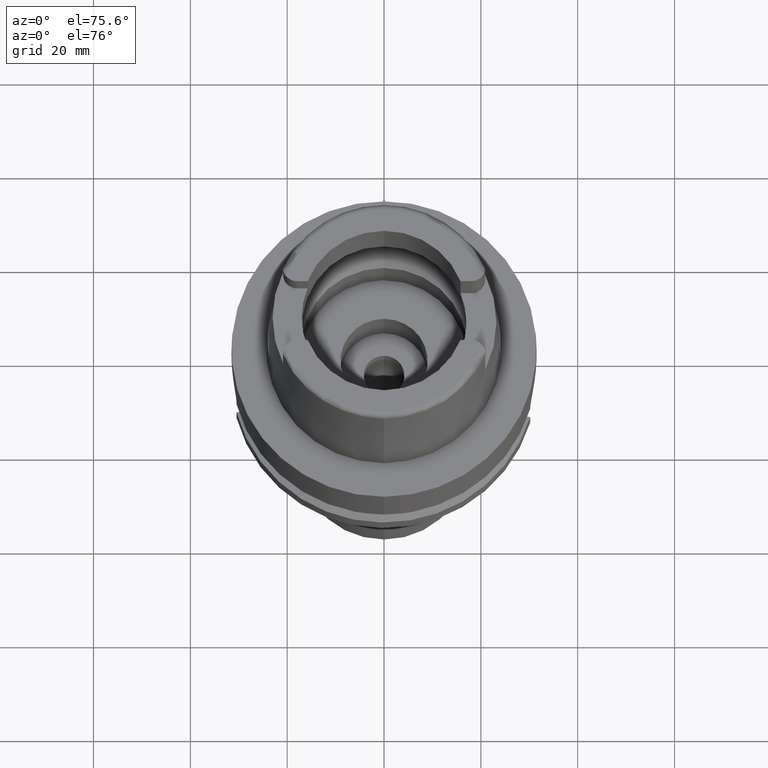
[diagram: clean part render]
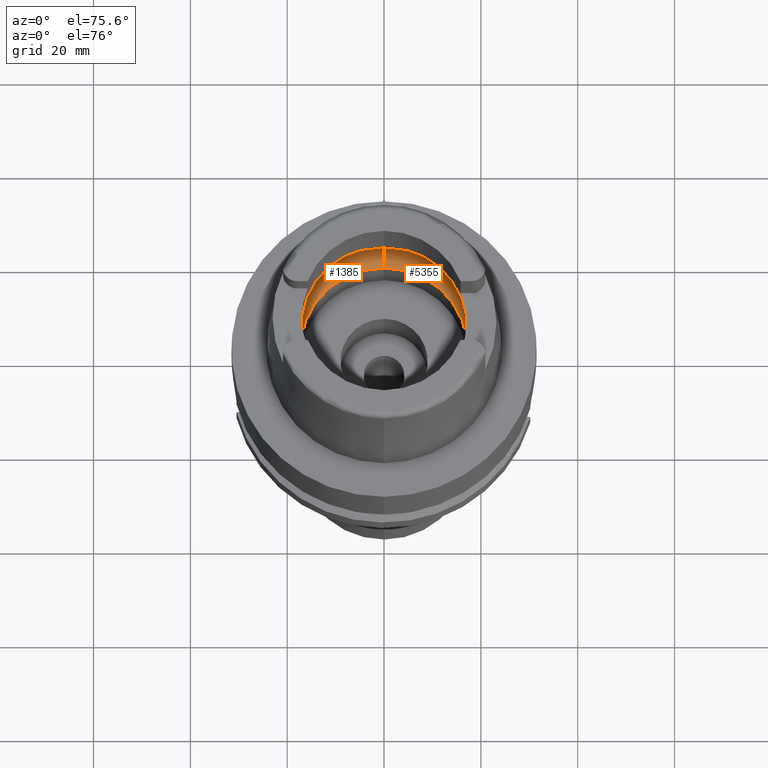
[diagram: same view with one multi-face feature highlighted, each face labeled with its STEP entity id]
A machine part, auxiliary view. The highlighted faces form ONE feature: a constant-radius fillet chain: 2 tangent blend faces with common blend radius 8 mm. The faces share edges in the B-rep.
Their STEP definitions:
[1] entity #1385 (Torus):
#40 = CARTESIAN_POINT ( 'NONE',  ( 0.0000000000000000000, -20.00000000000000000, 6.186348233825000875 ) ) ;
#92 = CARTESIAN_POINT ( 'NONE',  ( -19.93292508344945801, 1.081630659659294169, 5.408972087979956989 ) ) ;
#218 = CARTESIAN_POINT ( 'NONE',  ( 0.0000000000000000000, 20.00000000000000000, 6.186348233825000875 ) ) ;
#250 = CARTESIAN_POINT ( 'NONE',  ( -19.88332310116147283, 2.178371483505385786, 5.921391814315846602 ) ) ;
#377 = AXIS2_PLACEMENT_3D ( 'NONE', #5095, #5513, #3709 ) ;
#487 = EDGE_CURVE ( 'NONE', #1128, #4048, #2598, .T. ) ;
#565 = CIRCLE ( 'NONE', #3840, 20.00000000000001421 ) ;
#658 = ORIENTED_EDGE ( 'NONE', *, *, #5400, .T. ) ;
#811 = CARTESIAN_POINT ( 'NONE',  ( 0.0000000000000000000, 17.25000000000000000, 0.1500000000000999700 ) ) ;
#860 = CARTESIAN_POINT ( 'NONE',  ( -19.86453968564131500, -2.328737885376345407, 6.053878405347992597 ) ) ;
#863 = DIRECTION ( 'NONE',  ( 0.0000000000000000000, -0.6562500000000006661, -0.7545435292281016393 ) ) ;
#1001 = CARTESIAN_POINT ( 'NONE',  ( -19.84575864665999845, -2.479085262491000030, 6.186348233825000875 ) ) ;
#1012 = CARTESIAN_POINT ( 'NONE',  ( -19.93856671042052398, -0.9459665778997381480, 5.348222674928019060 ) ) ;
#1047 = CARTESIAN_POINT ( 'NONE',  ( 0.0000000000000000000, 0.0000000000000000000, 0.1500000000000999700 ) ) ;
#1104 = CARTESIAN_POINT ( 'NONE',  ( 0.0000000000000000000, 0.0000000000000000000, 6.186348233825000875 ) ) ;
#1128 = VERTEX_POINT ( 'NONE', #4513 ) ;
#1266 = VERTEX_POINT ( 'NONE', #1001 ) ;
#1287 = CARTESIAN_POINT ( 'NONE',  ( -19.88058961472209774, -2.158414018199903417, 5.925204145833316893 ) ) ;
#1289 = DIRECTION ( 'NONE',  ( -1.000000000000000000, 0.0000000000000000000, 0.0000000000000000000 ) ) ;
#1318 = EDGE_CURVE ( 'NONE', #4048, #1266, #2782, .T. ) ;
#1385 = ADVANCED_FACE ( 'NONE', ( #4689 ), #4540, .F. ) ;
#1449 = CARTESIAN_POINT ( 'NONE',  ( -19.92208494194046509, -1.430041077684033990, 5.533135808937241329 ) ) ;
#1451 = VERTEX_POINT ( 'NONE', #218 ) ;
#1478 = CARTESIAN_POINT ( 'NONE',  ( -19.92517785718085577, -1.343613127942956842, 5.498962406970089312 ) ) ;
#1525 = DIRECTION ( 'NONE',  ( 0.0000000000000000000, -1.000000000000000000, 0.0000000000000000000 ) ) ;
#1531 = CARTESIAN_POINT ( 'NONE',  ( -19.92840422587602944, 1.244362650384072122, 5.462311864171463860 ) ) ;
#1548 = DIRECTION ( 'NONE',  ( 0.0000000000000000000, 0.0000000000000000000, -1.000000000000000000 ) ) ;
#1631 = CARTESIAN_POINT ( 'NONE',  ( 0.0000000000000000000, 0.0000000000000000000, 6.186348233825000875 ) ) ;
#1716 = CARTESIAN_POINT ( 'NONE',  ( 0.0000000000000000000, -12.00000000000000000, 6.186348233825000875 ) ) ;
#1741 = CARTESIAN_POINT ( 'NONE',  ( -19.94501428475999560, -0.4960423020627297008, 5.249999999999995559 ) ) ;
#1768 = EDGE_CURVE ( 'NONE', #2591, #1128, #5063, .T. ) ;
#1789 = CARTESIAN_POINT ( 'NONE',  ( -19.94340239125193293, 0.4850157974226460000, 5.274610163457148282 ) ) ;
#1814 = CARTESIAN_POINT ( 'NONE',  ( -19.93096058823649130, 1.157935579649966629, 5.432577573767241041 ) ) ;
#2138 = VERTEX_POINT ( 'NONE', #5273 ) ;
#2222 = ORIENTED_EDGE ( 'NONE', *, *, #487, .F. ) ;
#2240 = CARTESIAN_POINT ( 'NONE',  ( -19.93655184384261858, 0.9261166967963114782, 5.364558725656097593 ) ) ;
#2352 = CARTESIAN_POINT ( 'NONE',  ( -19.90996073982917380, 1.795817278995830657, 5.670328124222732136 ) ) ;
#2429 = DIRECTION ( 'NONE',  ( 0.0000000000000000000, 0.0000000000000000000, 1.000000000000000000 ) ) ;
#2499 = AXIS2_PLACEMENT_3D ( 'NONE', #2506, #2429, #5527 ) ;
#2506 = CARTESIAN_POINT ( 'NONE',  ( 0.0000000000000000000, 0.0000000000000000000, 6.186348233825000875 ) ) ;
#2587 = CARTESIAN_POINT ( 'NONE',  ( -19.91448525756728927, -1.610510976265786987, 5.612925495665686881 ) ) ;
#2591 = VERTEX_POINT ( 'NONE', #811 ) ;
#2598 = CIRCLE ( 'NONE', #3978, 7.999999999999992895 ) ;
#2758 = CARTESIAN_POINT ( 'NONE',  ( -19.84575864665999845, -2.479085262491000030, 6.186348233825000875 ) ) ;
#2782 = CIRCLE ( 'NONE', #4171, 20.00000000000000000 ) ;
#2813 = ORIENTED_EDGE ( 'NONE', *, *, #3510, .F. ) ;
#2827 = DIRECTION ( 'NONE',  ( -0.9922879323327794543, 0.1239542631244973381, 0.0000000000000000000 ) ) ;
#3104 = CARTESIAN_POINT ( 'NONE',  ( -19.93856671072771292, 0.8185607198028845843, 5.338678409714962214 ) ) ;
#3186 = ORIENTED_EDGE ( 'NONE', *, *, #4888, .F. ) ;
#3243 = EDGE_LOOP ( 'NONE', ( #5608, #2222, #4520, #658, #3186, #2813, #3447 ) ) ;
#3272 = CARTESIAN_POINT ( 'NONE',  ( -19.84575864665999845, 2.479085262489999941, 6.186348233825000875 ) ) ;
#3292 = CARTESIAN_POINT ( 'NONE',  ( -19.92705993187612989, 1.286922590644232978, 5.477696685208107930 ) ) ;
#3317 = CARTESIAN_POINT ( 'NONE',  ( -19.92646963884338263, 1.305022040076338818, 5.484397814373272340 ) ) ;
#3405 = B_SPLINE_CURVE_WITH_KNOTS ( 'NONE', 3,
 ( #2758, #860, #1287, #4366, #4907, #2587, #4526, #1449, #4963, #4497, #1478, #5363, #1012, #1741, #5390 ),
 .UNSPECIFIED., .F., .F.,
 ( 4, 2, 2, 1, 1, 1, 2, 2, 4 ),
 ( 0.0000000000000000000, 0.2500000000000051070, 0.3750000000000077716, 0.4375000000000091038, 0.4687500000000098255, 0.4843750000000101030, 0.4921875000000099920, 0.5000000000000098810, 1.000000000000000000 ),
 .UNSPECIFIED. ) ;
#3447 = ORIENTED_EDGE ( 'NONE', *, *, #5122, .F. ) ;
#3510 = EDGE_CURVE ( 'NONE', #5152, #2138, #4010, .T. ) ;
#3602 = DIRECTION ( 'NONE',  ( 0.0000000000000000000, 1.000000000000000000, 0.0000000000000000000 ) ) ;
#3709 = DIRECTION ( 'NONE',  ( 0.0000000000000000000, 0.6562500000000006661, -0.7545435292281016393 ) ) ;
#3840 = AXIS2_PLACEMENT_3D ( 'NONE', #1104, #5028, #2827 ) ;
#3961 = CARTESIAN_POINT ( 'NONE',  ( -19.94501428476000271, 0.2480002814738951344, 5.249999999999999112 ) ) ;
#3978 = AXIS2_PLACEMENT_3D ( 'NONE', #1716, #1289, #863 ) ;
#4010 = B_SPLINE_CURVE_WITH_KNOTS ( 'NONE', 3,
 ( #5240, #3961, #1789, #3104, #2240, #92, #1814, #1531, #3292, #3317, #4174, #5067, #2352, #250, #3272 ),
 .UNSPECIFIED., .F., .F.,
 ( 4, 2, 2, 1, 1, 1, 2, 2, 4 ),
 ( 0.0000000000000000000, 0.2499999999999956146, 0.3749999999999934497, 0.4374999999999923395, 0.4687499999999917288, 0.4843749999999914513, 0.4921874999999914513, 0.4999999999999915623, 1.000000000000000000 ),
 .UNSPECIFIED. ) ;
#4048 = VERTEX_POINT ( 'NONE', #40 ) ;
#4171 = AXIS2_PLACEMENT_3D ( 'NONE', #1631, #1548, #1525 ) ;
#4174 = CARTESIAN_POINT ( 'NONE',  ( -19.92607296192538513, 1.317057065037986030, 5.488888788417265907 ) ) ;
#4366 = CARTESIAN_POINT ( 'NONE',  ( -19.90056784349247820, -1.871074272730828048, 5.748194928871746434 ) ) ;
#4497 = CARTESIAN_POINT ( 'NONE',  ( -19.92467615132159864, -1.358120919786871328, 5.504564686247708671 ) ) ;
#4506 = DIRECTION ( 'NONE',  ( 0.0000000000000000000, 0.0000000000000000000, 1.000000000000000000 ) ) ;
#4513 = CARTESIAN_POINT ( 'NONE',  ( 0.0000000000000000000, -17.25000000000000000, 0.1500000000000999700 ) ) ;
#4520 = ORIENTED_EDGE ( 'NONE', *, *, #1768, .F. ) ;
#4526 = CARTESIAN_POINT ( 'NONE',  ( -19.91819960699401193, -1.528790138807751164, 5.574827418276589341 ) ) ;
#4540 = TOROIDAL_SURFACE ( 'NONE', #2499, 12.00000000000000000, 8.000000000000000000 ) ;
#4587 = CIRCLE ( 'NONE', #377, 7.999999999999992895 ) ;
#4689 = FACE_OUTER_BOUND ( 'NONE', #3243, .T. ) ;
#4888 = EDGE_CURVE ( 'NONE', #2138, #1451, #565, .T. ) ;
#4907 = CARTESIAN_POINT ( 'NONE',  ( -19.90654447560747542, -1.770008974173177263, 5.691881888190377659 ) ) ;
#4963 = CARTESIAN_POINT ( 'NONE',  ( -19.92391559123418787, -1.379822842001579009, 5.513022806674898746 ) ) ;
#5028 = DIRECTION ( 'NONE',  ( 0.0000000000000000000, 0.0000000000000000000, -1.000000000000000000 ) ) ;
#5063 = CIRCLE ( 'NONE', #5334, 17.25000000000000000 ) ;
#5067 = CARTESIAN_POINT ( 'NONE',  ( -19.92591704426989452, 1.321751840890049490, 5.490650643677390974 ) ) ;
#5095 = CARTESIAN_POINT ( 'NONE',  ( 0.0000000000000000000, 12.00000000000000000, 6.186348233825000875 ) ) ;
#5122 = EDGE_CURVE ( 'NONE', #1266, #5152, #3405, .T. ) ;
#5152 = VERTEX_POINT ( 'NONE', #5217 ) ;
#5217 = CARTESIAN_POINT ( 'NONE',  ( -19.94501428475999916, 0.0000000000000000000, 5.250000000000000000 ) ) ;
#5240 = CARTESIAN_POINT ( 'NONE',  ( -19.94501428475999916, 0.0000000000000000000, 5.250000000000000000 ) ) ;
#5273 = CARTESIAN_POINT ( 'NONE',  ( -19.84575864665999845, 2.479085262489999941, 6.186348233825000875 ) ) ;
#5334 = AXIS2_PLACEMENT_3D ( 'NONE', #1047, #4506, #3602 ) ;
#5363 = CARTESIAN_POINT ( 'NONE',  ( -19.92547007504345302, -1.335031240339097369, 5.495683724100088874 ) ) ;
#5390 = CARTESIAN_POINT ( 'NONE',  ( -19.94501428475999916, 0.0000000000000000000, 5.250000000000000000 ) ) ;
#5400 = EDGE_CURVE ( 'NONE', #2591, #1451, #4587, .T. ) ;
#5513 = DIRECTION ( 'NONE',  ( 1.000000000000000000, 0.0000000000000000000, 0.0000000000000000000 ) ) ;
#5527 = DIRECTION ( 'NONE',  ( 0.0000000000000000000, 1.000000000000000000, 0.0000000000000000000 ) ) ;
#5608 = ORIENTED_EDGE ( 'NONE', *, *, #1318, .F. ) ;
[2] entity #5355 (Torus):
#31 = CIRCLE ( 'NONE', #479, 17.25000000000000000 ) ;
#40 = CARTESIAN_POINT ( 'NONE',  ( 0.0000000000000000000, -20.00000000000000000, 6.186348233825000875 ) ) ;
#113 = TOROIDAL_SURFACE ( 'NONE', #832, 12.00000000000000000, 8.000000000000000000 ) ;
#185 = ORIENTED_EDGE ( 'NONE', *, *, #4917, .F. ) ;
#196 = CARTESIAN_POINT ( 'NONE',  ( 19.92840411800285594, -1.244366584479167814, 5.462313247185328180 ) ) ;
#214 = CARTESIAN_POINT ( 'NONE',  ( 0.0000000000000000000, 0.0000000000000000000, 6.186348233825000875 ) ) ;
#218 = CARTESIAN_POINT ( 'NONE',  ( 0.0000000000000000000, 20.00000000000000000, 6.186348233825000875 ) ) ;
#245 = CARTESIAN_POINT ( 'NONE',  ( 19.93655178888372248, -0.9261198900591437466, 5.364559530321087344 ) ) ;
#274 = VERTEX_POINT ( 'NONE', #3309 ) ;
#331 = CIRCLE ( 'NONE', #1980, 20.00000000000000000 ) ;
#377 = AXIS2_PLACEMENT_3D ( 'NONE', #5095, #5513, #3709 ) ;
#479 = AXIS2_PLACEMENT_3D ( 'NONE', #2804, #4564, #637 ) ;
#487 = EDGE_CURVE ( 'NONE', #1128, #4048, #2598, .T. ) ;
#637 = DIRECTION ( 'NONE',  ( 0.0000000000000000000, -1.000000000000000000, 0.0000000000000000000 ) ) ;
#643 = CARTESIAN_POINT ( 'NONE',  ( 19.84575864665999845, -2.479085262491000030, 6.186348233825000875 ) ) ;
#654 = CARTESIAN_POINT ( 'NONE',  ( 19.91448538158095616, 1.610508053762637504, 5.612924102263966653 ) ) ;
#701 = EDGE_CURVE ( 'NONE', #1451, #2552, #331, .T. ) ;
#731 = CARTESIAN_POINT ( 'NONE',  ( 19.93292500493674524, -1.081634238850528451, 5.408973163817647034 ) ) ;
#766 = CARTESIAN_POINT ( 'NONE',  ( 19.93856675271270618, 0.9459631445367676639, 5.348221889603026469 ) ) ;
#774 = ORIENTED_EDGE ( 'NONE', *, *, #487, .T. ) ;
#811 = CARTESIAN_POINT ( 'NONE',  ( 0.0000000000000000000, 17.25000000000000000, 0.1500000000000999700 ) ) ;
#832 = AXIS2_PLACEMENT_3D ( 'NONE', #3249, #5070, #3785 ) ;
#863 = DIRECTION ( 'NONE',  ( 0.0000000000000000000, -0.6562500000000006661, -0.7545435292281016393 ) ) ;
#952 = ORIENTED_EDGE ( 'NONE', *, *, #2740, .F. ) ;
#1094 = CARTESIAN_POINT ( 'NONE',  ( 19.84575864665999845, 2.479085262491000030, 6.186348233825000875 ) ) ;
#1128 = VERTEX_POINT ( 'NONE', #4513 ) ;
#1190 = CARTESIAN_POINT ( 'NONE',  ( 19.86453973035713005, 2.328737527431126608, 6.053878089965426312 ) ) ;
#1289 = DIRECTION ( 'NONE',  ( -1.000000000000000000, 0.0000000000000000000, 0.0000000000000000000 ) ) ;
#1331 = CARTESIAN_POINT ( 'NONE',  ( 19.84575864665999845, -2.479085262491000030, 6.186348233825000875 ) ) ;
#1364 = EDGE_LOOP ( 'NONE', ( #3404, #2596, #3533, #185, #774, #952, #4448 ) ) ;
#1451 = VERTEX_POINT ( 'NONE', #218 ) ;
#1550 = CARTESIAN_POINT ( 'NONE',  ( 19.88332301270218849, -2.178372191595286722, 5.921392438207989883 ) ) ;
#1618 = CARTESIAN_POINT ( 'NONE',  ( 19.92391571847978327, 1.379818936262329210, 5.513021260670505796 ) ) ;
#1716 = CARTESIAN_POINT ( 'NONE',  ( 0.0000000000000000000, -12.00000000000000000, 6.186348233825000875 ) ) ;
#1871 = CARTESIAN_POINT ( 'NONE',  ( 0.0000000000000000000, 0.0000000000000000000, 6.186348233825000875 ) ) ;
#1902 = B_SPLINE_CURVE_WITH_KNOTS ( 'NONE', 3,
 ( #1094, #1190, #3735, #1939, #2819, #654, #2380, #4145, #1618, #3347, #5465, #2925, #766, #1966, #2490 ),
 .UNSPECIFIED., .F., .F.,
 ( 4, 2, 2, 1, 1, 1, 2, 2, 4 ),
 ( 0.0000000000000000000, 0.2500000000000098810, 0.3750000000000143774, 0.4375000000000168199, 0.4687500000000177636, 0.4843750000000178746, 0.4921875000000178191, 0.5000000000000177636, 1.000000000000000000 ),
 .UNSPECIFIED. ) ;
#1929 = CARTESIAN_POINT ( 'NONE',  ( 19.92607283891191727, -1.317061137141596561, 5.488890315884850324 ) ) ;
#1939 = CARTESIAN_POINT ( 'NONE',  ( 19.90056795285840252, 1.871072381427654641, 5.748193827892907670 ) ) ;
#1950 = DIRECTION ( 'NONE',  ( 0.9922879323327794543, -0.1239542631244973381, 0.0000000000000000000 ) ) ;
#1966 = CARTESIAN_POINT ( 'NONE',  ( 19.94501428475999916, 0.4960402853743813290, 5.250000000000000888 ) ) ;
#1980 = AXIS2_PLACEMENT_3D ( 'NONE', #1871, #3618, #2695 ) ;
#1986 = CARTESIAN_POINT ( 'NONE',  ( 19.92705981527248937, -1.286926606873724177, 5.477698152406411225 ) ) ;
#2373 = CARTESIAN_POINT ( 'NONE',  ( 19.93856666885426776, -0.8185636124059638696, 5.338679045133562617 ) ) ;
#2380 = CARTESIAN_POINT ( 'NONE',  ( 19.91819973341328875, 1.528786876979157716, 5.574825955112756581 ) ) ;
#2397 = VERTEX_POINT ( 'NONE', #1331 ) ;
#2440 = FACE_OUTER_BOUND ( 'NONE', #1364, .T. ) ;
#2490 = CARTESIAN_POINT ( 'NONE',  ( 19.94501428475999916, 0.0000000000000000000, 5.250000000000000000 ) ) ;
#2552 = VERTEX_POINT ( 'NONE', #5609 ) ;
#2591 = VERTEX_POINT ( 'NONE', #811 ) ;
#2596 = ORIENTED_EDGE ( 'NONE', *, *, #701, .F. ) ;
#2598 = CIRCLE ( 'NONE', #3978, 7.999999999999992895 ) ;
#2695 = DIRECTION ( 'NONE',  ( 0.0000000000000000000, 1.000000000000000000, 0.0000000000000000000 ) ) ;
#2740 = EDGE_CURVE ( 'NONE', #2397, #4048, #5518, .T. ) ;
#2804 = CARTESIAN_POINT ( 'NONE',  ( 0.0000000000000000000, 0.0000000000000000000, 0.1500000000000999700 ) ) ;
#2811 = CARTESIAN_POINT ( 'NONE',  ( 19.92646951840612246, -1.305026090026948804, 5.484399317726082579 ) ) ;
#2819 = CARTESIAN_POINT ( 'NONE',  ( 19.90654459260023401, 1.770006697072565638, 5.691880654306289422 ) ) ;
#2857 = CARTESIAN_POINT ( 'NONE',  ( 19.94501428476000271, -0.2480012822880987844, 5.249999999999999112 ) ) ;
#2925 = CARTESIAN_POINT ( 'NONE',  ( 19.92547020324161622, 1.335027099705274445, 5.495682146681705404 ) ) ;
#3140 = B_SPLINE_CURVE_WITH_KNOTS ( 'NONE', 3,
 ( #3557, #2857, #4111, #2373, #245, #731, #5408, #196, #1986, #2811, #1929, #4649, #5034, #1550, #643 ),
 .UNSPECIFIED., .F., .F.,
 ( 4, 2, 2, 1, 1, 1, 2, 2, 4 ),
 ( 0.0000000000000000000, 0.2499999999999987788, 0.3749999999999982792, 0.4374999999999980571, 0.4687499999999978906, 0.4843749999999975020, 0.4921874999999975575, 0.4999999999999975575, 1.000000000000000000 ),
 .UNSPECIFIED. ) ;
#3249 = CARTESIAN_POINT ( 'NONE',  ( 0.0000000000000000000, 0.0000000000000000000, 6.186348233825000875 ) ) ;
#3309 = CARTESIAN_POINT ( 'NONE',  ( 19.94501428475999916, 0.0000000000000000000, 5.250000000000000000 ) ) ;
#3347 = CARTESIAN_POINT ( 'NONE',  ( 19.92467627844355249, 1.358116918539703288, 5.504563131532022702 ) ) ;
#3404 = ORIENTED_EDGE ( 'NONE', *, *, #5403, .F. ) ;
#3427 = AXIS2_PLACEMENT_3D ( 'NONE', #214, #4891, #1950 ) ;
#3533 = ORIENTED_EDGE ( 'NONE', *, *, #5400, .F. ) ;
#3557 = CARTESIAN_POINT ( 'NONE',  ( 19.94501428475999916, 0.0000000000000000000, 5.250000000000000000 ) ) ;
#3618 = DIRECTION ( 'NONE',  ( 0.0000000000000000000, 0.0000000000000000000, -1.000000000000000000 ) ) ;
#3709 = DIRECTION ( 'NONE',  ( 0.0000000000000000000, 0.6562500000000006661, -0.7545435292281016393 ) ) ;
#3735 = CARTESIAN_POINT ( 'NONE',  ( 19.88058969236887918, 2.158413152842832083, 5.925203484518751118 ) ) ;
#3785 = DIRECTION ( 'NONE',  ( 0.0000000000000000000, 1.000000000000000000, 0.0000000000000000000 ) ) ;
#3978 = AXIS2_PLACEMENT_3D ( 'NONE', #1716, #1289, #863 ) ;
#4048 = VERTEX_POINT ( 'NONE', #40 ) ;
#4111 = CARTESIAN_POINT ( 'NONE',  ( 19.94340238078356720, -0.4850176595367738930, 5.274610361541468784 ) ) ;
#4145 = CARTESIAN_POINT ( 'NONE',  ( 19.92208506923287104, 1.430037391292800830, 5.533134286468000873 ) ) ;
#4304 = EDGE_CURVE ( 'NONE', #274, #2397, #3140, .T. ) ;
#4448 = ORIENTED_EDGE ( 'NONE', *, *, #4304, .F. ) ;
#4513 = CARTESIAN_POINT ( 'NONE',  ( 0.0000000000000000000, -17.25000000000000000, 0.1500000000000999700 ) ) ;
#4564 = DIRECTION ( 'NONE',  ( 0.0000000000000000000, 0.0000000000000000000, 1.000000000000000000 ) ) ;
#4587 = CIRCLE ( 'NONE', #377, 7.999999999999992895 ) ;
#4649 = CARTESIAN_POINT ( 'NONE',  ( 19.92591691872320681, -1.321755966737424792, 5.490652197696729075 ) ) ;
#4891 = DIRECTION ( 'NONE',  ( 0.0000000000000000000, 0.0000000000000000000, -1.000000000000000000 ) ) ;
#4917 = EDGE_CURVE ( 'NONE', #1128, #2591, #31, .T. ) ;
#5034 = CARTESIAN_POINT ( 'NONE',  ( 19.90996060949646207, -1.795819319521763990, 5.670329520825307057 ) ) ;
#5070 = DIRECTION ( 'NONE',  ( 0.0000000000000000000, 0.0000000000000000000, 1.000000000000000000 ) ) ;
#5095 = CARTESIAN_POINT ( 'NONE',  ( 0.0000000000000000000, 12.00000000000000000, 6.186348233825000875 ) ) ;
#5355 = ADVANCED_FACE ( 'NONE', ( #2440 ), #113, .F. ) ;
#5400 = EDGE_CURVE ( 'NONE', #2591, #1451, #4587, .T. ) ;
#5403 = EDGE_CURVE ( 'NONE', #2552, #274, #1902, .T. ) ;
#5408 = CARTESIAN_POINT ( 'NONE',  ( 19.93096049696546856, -1.157939335591919860, 5.432578789541300246 ) ) ;
#5465 = CARTESIAN_POINT ( 'NONE',  ( 19.92517798419736508, 1.343609062691706768, 5.498960846759680443 ) ) ;
#5513 = DIRECTION ( 'NONE',  ( 1.000000000000000000, 0.0000000000000000000, 0.0000000000000000000 ) ) ;
#5518 = CIRCLE ( 'NONE', #3427, 20.00000000000001421 ) ;
#5609 = CARTESIAN_POINT ( 'NONE',  ( 19.84575864665999845, 2.479085262491000030, 6.186348233825000875 ) ) ;